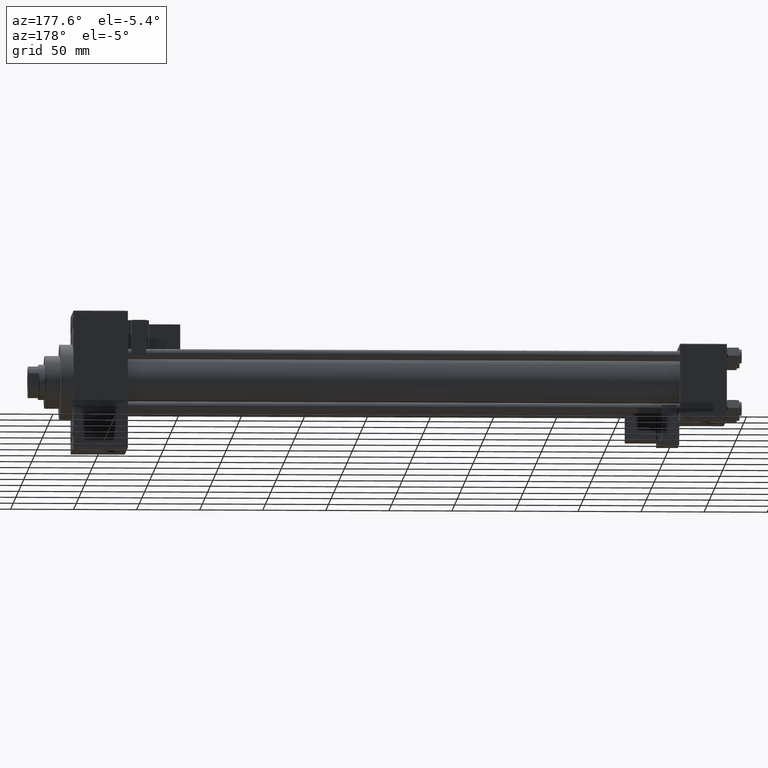
[diagram: clean part render]
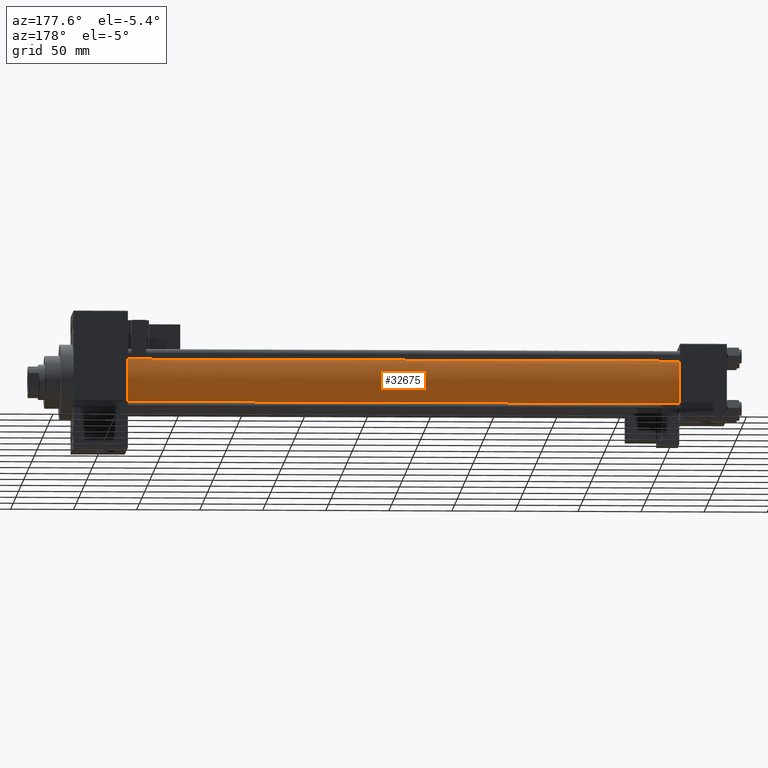
[diagram: same view with one face highlighted and labeled with its STEP entity id]
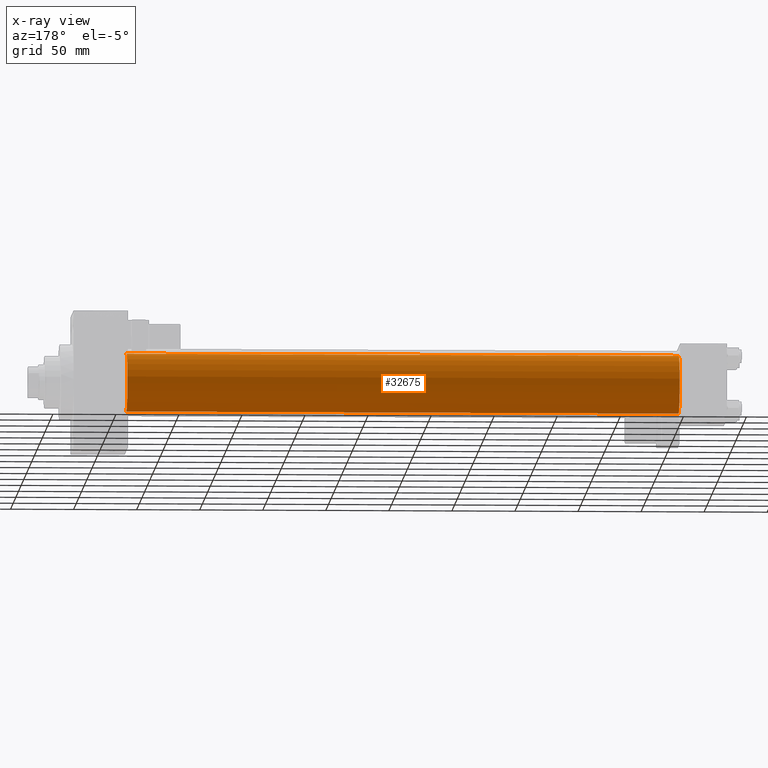
[diagram: x-ray of the same camera — body ghosted, the highlighted face saturated]
A machine part, auxiliary view. The second image highlights one B-rep face of the part: STEP entity #32675.
The next image is the same camera in x-ray: the body ghosted, the highlighted face saturated — about 0% of this face is hidden behind the body in this view.
In plain terms, the highlighted cylindrical surface (edge-blend (fillet) strip) has radius 23 mm, axis along (-1, -0, -0).
Its self-contained STEP definition (entity closure, byte-faithful):
#2282 = CARTESIAN_POINT ( 'NONE',  ( 475.0000000000000000, 2.146024240737016609E-16, -23.00000000000000000 ) ) ;
#2604 = ORIENTED_EDGE ( 'NONE', *, *, #9326, .T. ) ;
#2618 = AXIS2_PLACEMENT_3D ( 'NONE', #49759, #14587, #21898 ) ;
#4773 = AXIS2_PLACEMENT_3D ( 'NONE', #43881, #7944, #19393 ) ;
#7944 = DIRECTION ( 'NONE',  ( 1.000000000000000000, 0.000000000000000000, 0.000000000000000000 ) ) ;
#8935 = CIRCLE ( 'NONE', #4773, 23.00000000000000000 ) ;
#9326 = EDGE_CURVE ( 'NONE', #37055, #21093, #35900, .T. ) ;
#12338 = ORIENTED_EDGE ( 'NONE', *, *, #38249, .F. ) ;
#14587 = DIRECTION ( 'NONE',  ( 1.000000000000000000, -0.000000000000000000, 0.000000000000000000 ) ) ;
#14790 = LINE ( 'NONE', #35353, #16289 ) ;
#15660 = ORIENTED_EDGE ( 'NONE', *, *, #46291, .T. ) ;
#16289 = VECTOR ( 'NONE', #31431, 1000.000000000000000 ) ;
#18155 = DIRECTION ( 'NONE',  ( -1.000000000000000000, -0.000000000000000000, -0.000000000000000000 ) ) ;
#19393 = DIRECTION ( 'NONE',  ( 0.000000000000000000, 0.000000000000000000, -1.000000000000000000 ) ) ;
#19680 = CYLINDRICAL_SURFACE ( 'NONE', #50827, 23.00000000000000000 ) ;
#21093 = VERTEX_POINT ( 'NONE', #33476 ) ;
#21339 = CARTESIAN_POINT ( 'NONE',  ( 475.0000000000000000, -2.602085213965210642E-15, 23.00000000000000000 ) ) ;
#21898 = DIRECTION ( 'NONE',  ( 0.000000000000000000, 0.000000000000000000, 1.000000000000000000 ) ) ;
#22806 = FACE_OUTER_BOUND ( 'NONE', #26427, .T. ) ;
#23270 = VERTEX_POINT ( 'NONE', #21339 ) ;
#25147 = ORIENTED_EDGE ( 'NONE', *, *, #35919, .F. ) ;
#25987 = LINE ( 'NONE', #2282, #43209 ) ;
#26427 = EDGE_LOOP ( 'NONE', ( #12338, #15660, #2604, #25147 ) ) ;
#31126 = DIRECTION ( 'NONE',  ( -1.000000000000000000, -0.000000000000000000, -0.000000000000000000 ) ) ;
#31431 = DIRECTION ( 'NONE',  ( -1.000000000000000000, -0.000000000000000000, -0.000000000000000000 ) ) ;
#31846 = CARTESIAN_POINT ( 'NONE',  ( 475.0000000000000000, 2.146024240737016609E-16, -23.00000000000000000 ) ) ;
#32675 = ADVANCED_FACE ( 'NONE', ( #22806 ), #19680, .T. ) ;
#33476 = CARTESIAN_POINT ( 'NONE',  ( 36.99999999999997868, -2.602085213965210642E-15, 23.00000000000000000 ) ) ;
#35353 = CARTESIAN_POINT ( 'NONE',  ( 475.0000000000000000, -2.602085213965210642E-15, 23.00000000000000000 ) ) ;
#35900 = CIRCLE ( 'NONE', #2618, 23.00000000000000000 ) ;
#35919 = EDGE_CURVE ( 'NONE', #23270, #21093, #14790, .T. ) ;
#37055 = VERTEX_POINT ( 'NONE', #38449 ) ;
#38249 = EDGE_CURVE ( 'NONE', #39344, #23270, #8935, .T. ) ;
#38449 = CARTESIAN_POINT ( 'NONE',  ( 36.99999999999997868, 2.146024240737016609E-16, -23.00000000000000000 ) ) ;
#39344 = VERTEX_POINT ( 'NONE', #31846 ) ;
#43209 = VECTOR ( 'NONE', #18155, 1000.000000000000000 ) ;
#43881 = CARTESIAN_POINT ( 'NONE',  ( 475.0000000000000000, -2.602085213965210642E-15, 0.000000000000000000 ) ) ;
#46291 = EDGE_CURVE ( 'NONE', #39344, #37055, #25987, .T. ) ;
#47558 = DIRECTION ( 'NONE',  ( 0.000000000000000000, 0.000000000000000000, 1.000000000000000000 ) ) ;
#49759 = CARTESIAN_POINT ( 'NONE',  ( 36.99999999999997868, -2.602085213965210642E-15, 0.000000000000000000 ) ) ;
#50827 = AXIS2_PLACEMENT_3D ( 'NONE', #51456, #31126, #47558 ) ;
#51456 = CARTESIAN_POINT ( 'NONE',  ( 475.0000000000000000, -2.602085213965210642E-15, 0.000000000000000000 ) ) ;